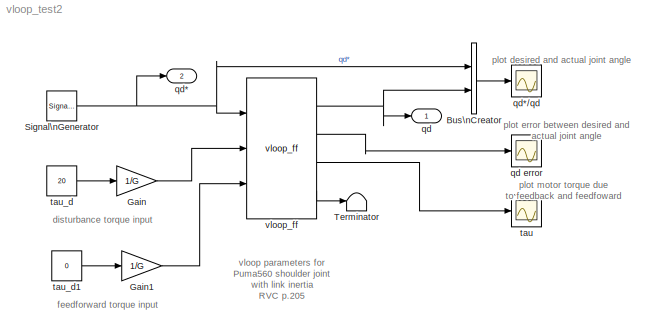
MODEL vloop_test2
KIND model
CONFIG InitFcn = G = 107.815;
BLOCK [BusCreator] Bus\nCreator
  DisplayOption = bar
  Inputs = 2
  Ports = [2, 1]
  SID = 1
BLOCK [Gain] Gain
  Gain = 1/G
  OutDataTypeStr = Inherit: Inherit via internal rule
  ParamDataTypeStr = Inherit: Inherit via internal rule
  SID = 2
  SaturateOnIntegerOverflow = off
BLOCK [Gain] Gain1
  Gain = 1/G
  OutDataTypeStr = Inherit: Inherit via internal rule
  ParamDataTypeStr = Inherit: Inherit via internal rule
  SID = 59
  SaturateOnIntegerOverflow = off
BLOCK [SignalGenerator] Signal\nGenerator
  Frequency = 2
  Ports = [0, 1]
  SID = 24
  WaveForm = sawtooth
BLOCK [Terminator] Terminator
  SID = 58
BLOCK [Outport] qd
  IconDisplay = Port number
  SID = 22
BLOCK [Scope] qd error
  DataFormat = StructureWithTime
  Floating = off
  NumInputPorts = 1
  Ports = [1]
  SID = 4
  SampleTime = 0
  SaveName = ScopeData2
  ShowLegends = off
  TimeRange = 1
  YMax = 0.7
  YMin = 0
BLOCK [Outport] qd*
  IconDisplay = Port number
  Port = 2
  SID = 23
BLOCK [Scope] qd*//qd
  DataFormat = StructureWithTime
  Floating = off
  NumInputPorts = 1
  Ports = [1]
  SID = 5
  SampleTime = 0
  ShowLegends = off
  TimeRange = 1
  YMax = 90
  YMin = 0
  ZoomMode = yonly
BLOCK [Scope] tau
  DataFormat = StructureWithTime
  Floating = off
  NumInputPorts = 1
  Ports = [1]
  SID = 6
  SampleTime = 0
  SaveName = ScopeData1
  ShowLegends = off
  TimeRange = 1
  YMax = 0.175
  YMin = -0.1
BLOCK [Constant] tau_d
  SID = 7
  Value = 20
BLOCK [Constant] tau_d1
  SID = 60
  Value = 0
BLOCK [Reference] vloop_ff  REF=roblocks/Dynamics/vloop_ff  (lib defined in mdl_2a292b13c81b, mdl_69400f8cfe22, +12 more)
  B = 817e-6
  J = 372e-6
  Ki = 0
  Km = 0.228
  Kv = 1
  Ports = [3, 4]
  SID = 57
  SourceBlock = roblocks/Dynamics/vloop_ff
  T = 0.001
  tau_max = 0.9
ANNOTATION (root): disturbance torque input
ANNOTATION (root): feedforward torque input
ANNOTATION (root): plot desired and actual joint angle
ANNOTATION (root): plot error between desired and \nactual joint angle
ANNOTATION (root): plot motor torque due\nto feedback and feedfoward
ANNOTATION (root): vloop parameters for\nPuma560 shoulder joint\nwith link inertia\nRVC p.205
LINE Bus\nCreator:1 -> qd*//qd:1
LINE Gain1:1 -> vloop_ff:3
LINE Gain:1 -> vloop_ff:2
NET Signal\nGenerator:1 -> Bus\nCreator:1, qd*:1, vloop_ff:1
LINE tau_d1:1 -> Gain1:1
LINE tau_d:1 -> Gain:1
NET vloop_ff:1 -> Bus\nCreator:2, qd:1
LINE vloop_ff:2 -> qd error:1
LINE vloop_ff:3 -> tau:1
LINE vloop_ff:4 -> Terminator:1
note: NET lines group one-source signal fan-out (src -> all destinations, sorted); 1:1 wires keep LINE
